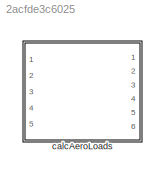
MODEL slx_2acfde3c6025
KIND library
CONFIG AbsTol = auto
CONFIG EnableMultiTasking = off
CONFIG FixedStep = auto
CONFIG MaxStep = auto
CONFIG MinStep = auto
CONFIG RelTol = 1e-3
CONFIG SampleTimeConstraint = Unconstrained
CONFIG Solver = VariableStepAuto
CONFIG SolverName = VariableStepAuto
CONFIG StartTime = 0.0
CONFIG StopTime = 10.0
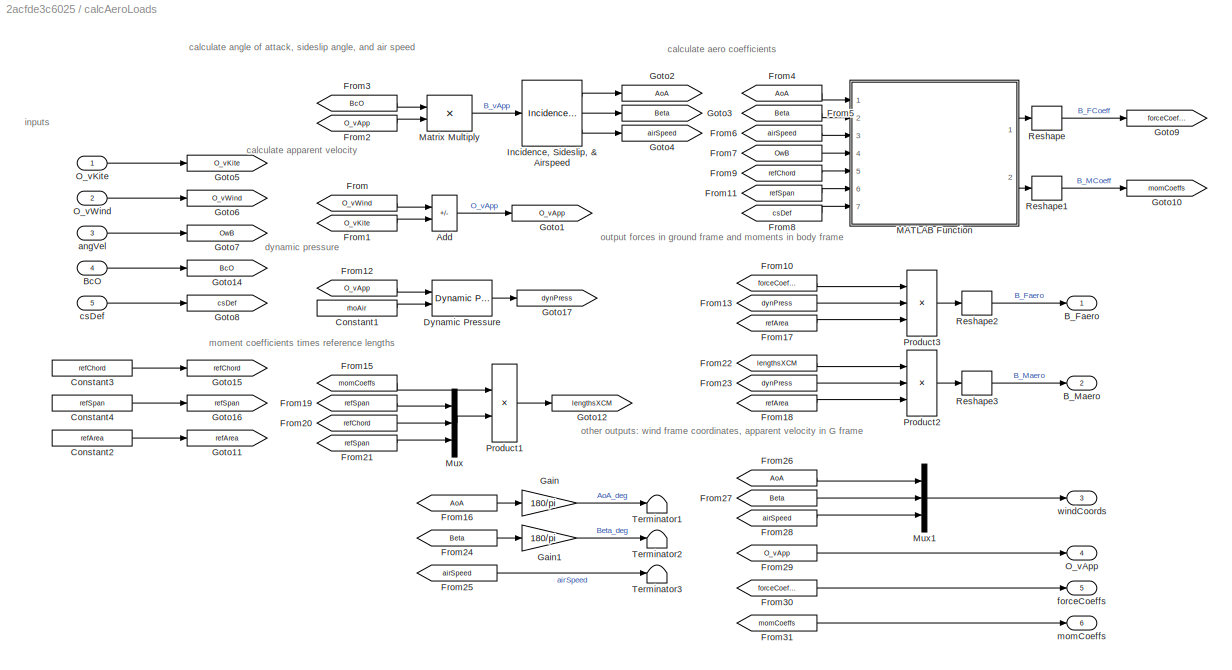
BLOCK [SubSystem] calcAeroLoads
  Ports = [5, 6]
  RequestExecContextInheritance = off
BLOCK [Sum] calcAeroLoads/Add
  IconShape = rectangular
  Inputs = +-
  Ports = [2, 1]
BLOCK [Outport] calcAeroLoads/B_Faero
BLOCK [Outport] calcAeroLoads/B_Maero
  Port = 2
BLOCK [Inport] calcAeroLoads/BcO
  Port = 4
BLOCK [Constant] calcAeroLoads/Constant1
  Value = rhoAir
BLOCK [Constant] calcAeroLoads/Constant2
  Value = refArea
BLOCK [Constant] calcAeroLoads/Constant3
  Value = refChord
BLOCK [Constant] calcAeroLoads/Constant4
  Value = refSpan
BLOCK [Reference] calcAeroLoads/Dynamic Pressure  REF=aerolibasang/Dynamic Pressure
  Ports = [2, 1]
  SourceBlock = aerolibasang/Dynamic Pressure
  SourceProductBaseCode = AE
  SourceType = Dynamic Pressure
BLOCK [From] calcAeroLoads/From
  GotoTag = O_vWind
BLOCK [From] calcAeroLoads/From1
  GotoTag = O_vKite
BLOCK [From] calcAeroLoads/From10
  GotoTag = forceCoeffs
BLOCK [From] calcAeroLoads/From11
  GotoTag = refSpan
BLOCK [From] calcAeroLoads/From12
  GotoTag = O_vApp
BLOCK [From] calcAeroLoads/From13
  GotoTag = dynPress
BLOCK [From] calcAeroLoads/From15
  GotoTag = momCoeffs
BLOCK [From] calcAeroLoads/From16
  GotoTag = AoA
BLOCK [From] calcAeroLoads/From17
  GotoTag = refArea
BLOCK [From] calcAeroLoads/From18
  GotoTag = refArea
BLOCK [From] calcAeroLoads/From19
  GotoTag = refSpan
BLOCK [From] calcAeroLoads/From2
  GotoTag = O_vApp
BLOCK [From] calcAeroLoads/From20
  GotoTag = refChord
BLOCK [From] calcAeroLoads/From21
  GotoTag = refSpan
BLOCK [From] calcAeroLoads/From22
  GotoTag = lengthsXCM
BLOCK [From] calcAeroLoads/From23
  GotoTag = dynPress
BLOCK [From] calcAeroLoads/From24
  GotoTag = Beta
BLOCK [From] calcAeroLoads/From25
  GotoTag = airSpeed
BLOCK [From] calcAeroLoads/From26
  GotoTag = AoA
BLOCK [From] calcAeroLoads/From27
  GotoTag = Beta
BLOCK [From] calcAeroLoads/From28
  GotoTag = airSpeed
BLOCK [From] calcAeroLoads/From29
  GotoTag = O_vApp
BLOCK [From] calcAeroLoads/From3
  GotoTag = BcO
BLOCK [From] calcAeroLoads/From30
  GotoTag = forceCoeffs
BLOCK [From] calcAeroLoads/From31
  GotoTag = momCoeffs
BLOCK [From] calcAeroLoads/From4
  GotoTag = AoA
BLOCK [From] calcAeroLoads/From5
  GotoTag = Beta
BLOCK [From] calcAeroLoads/From6
  GotoTag = airSpeed
BLOCK [From] calcAeroLoads/From7
  GotoTag = OwB
BLOCK [From] calcAeroLoads/From8
  GotoTag = csDef
BLOCK [From] calcAeroLoads/From9
  GotoTag = refChord
BLOCK [Gain] calcAeroLoads/Gain
  Gain = 180/pi
BLOCK [Gain] calcAeroLoads/Gain1
  Gain = 180/pi
BLOCK [Goto] calcAeroLoads/Goto1
  GotoTag = O_vApp
BLOCK [Goto] calcAeroLoads/Goto10
  GotoTag = momCoeffs
BLOCK [Goto] calcAeroLoads/Goto11
  GotoTag = refArea
BLOCK [Goto] calcAeroLoads/Goto12
  GotoTag = lengthsXCM
BLOCK [Goto] calcAeroLoads/Goto14
  GotoTag = BcO
BLOCK [Goto] calcAeroLoads/Goto15
  GotoTag = refChord
BLOCK [Goto] calcAeroLoads/Goto16
  GotoTag = refSpan
BLOCK [Goto] calcAeroLoads/Goto17
  GotoTag = dynPress
BLOCK [Goto] calcAeroLoads/Goto2
  GotoTag = AoA
BLOCK [Goto] calcAeroLoads/Goto3
  GotoTag = Beta
BLOCK [Goto] calcAeroLoads/Goto4
  GotoTag = airSpeed
BLOCK [Goto] calcAeroLoads/Goto5
  GotoTag = O_vKite
BLOCK [Goto] calcAeroLoads/Goto6
  GotoTag = O_vWind
BLOCK [Goto] calcAeroLoads/Goto7
  GotoTag = OwB
BLOCK [Goto] calcAeroLoads/Goto8
  GotoTag = csDef
BLOCK [Goto] calcAeroLoads/Goto9
  GotoTag = forceCoeffs
BLOCK [Reference] calcAeroLoads/Incidence, Sideslip, & Airspeed  REF=aerolibasang/Incidence, Sideslip,
& Airspeed
  Ports = [1, 3]
  SourceBlock = aerolibasang/Incidence, Sideslip,\n& Airspeed
  SourceProductBaseCode = AE
  SourceType = Incidence,Sideslip,&Airspeed
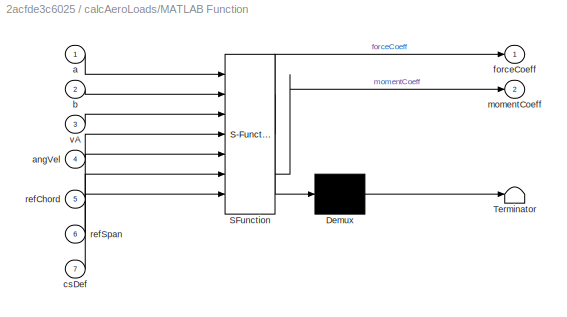
BLOCK [SubSystem] calcAeroLoads/MATLAB Function
  ErrorFcn = Stateflow.Translate.translate
  PermitHierarchicalResolution = ExplicitOnly
  Ports = [7, 2]
  RequestExecContextInheritance = off
  SFBlockType = MATLAB Function
  TreatAsAtomicUnit = on
BLOCK [Demux] calcAeroLoads/MATLAB Function/ Demux 
  Outputs = 1
  Ports = [1, 1]
BLOCK [S-Function] calcAeroLoads/MATLAB Function/ SFunction 
  EnableBusSupport = off
  FunctionName = sf_sfun
  PortCounts = [7 3]
  Ports = [7, 3]
  SFcnIsStateOwnerBlock = off
  SFunctionDeploymentMode = off
  Tag = Stateflow S-Function 2
BLOCK [Terminator] calcAeroLoads/MATLAB Function/ Terminator 
BLOCK [Inport] calcAeroLoads/MATLAB Function/a
BLOCK [Inport] calcAeroLoads/MATLAB Function/angVel
  Port = 4
BLOCK [Inport] calcAeroLoads/MATLAB Function/b
  Port = 2
BLOCK [Inport] calcAeroLoads/MATLAB Function/csDef
  Port = 7
BLOCK [Outport] calcAeroLoads/MATLAB Function/forceCoeff
BLOCK [Outport] calcAeroLoads/MATLAB Function/momentCoeff
  Port = 2
BLOCK [Inport] calcAeroLoads/MATLAB Function/refChord
  Port = 5
BLOCK [Inport] calcAeroLoads/MATLAB Function/refSpan
  Port = 6
BLOCK [Inport] calcAeroLoads/MATLAB Function/vA
  Port = 3
BLOCK [Product] calcAeroLoads/Matrix Multiply
  Multiplication = Matrix(*)
  Ports = [2, 1]
BLOCK [Mux] calcAeroLoads/Mux
  DisplayOption = bar
  Inputs = 3
  Ports = [3, 1]
BLOCK [Mux] calcAeroLoads/Mux1
  DisplayOption = bar
  Inputs = 3
  Ports = [3, 1]
BLOCK [Outport] calcAeroLoads/O_vApp
  Port = 4
BLOCK [Inport] calcAeroLoads/O_vKite
BLOCK [Inport] calcAeroLoads/O_vWind
  Port = 2
BLOCK [Product] calcAeroLoads/Product1
  Ports = [2, 1]
BLOCK [Product] calcAeroLoads/Product2
  Inputs = 3
  Ports = [3, 1]
BLOCK [Product] calcAeroLoads/Product3
  Inputs = 3
  Ports = [3, 1]
BLOCK [Reshape] calcAeroLoads/Reshape
  OutputDimensionality = Column vector (2-D)
  Ports = [1, 1]
BLOCK [Reshape] calcAeroLoads/Reshape1
  OutputDimensionality = Column vector (2-D)
  Ports = [1, 1]
BLOCK [Reshape] calcAeroLoads/Reshape2
  OutputDimensionality = Column vector (2-D)
  Ports = [1, 1]
BLOCK [Reshape] calcAeroLoads/Reshape3
  OutputDimensionality = Column vector (2-D)
  Ports = [1, 1]
BLOCK [Terminator] calcAeroLoads/Terminator1
BLOCK [Terminator] calcAeroLoads/Terminator2
BLOCK [Terminator] calcAeroLoads/Terminator3
BLOCK [Inport] calcAeroLoads/angVel
  Port = 3
BLOCK [Inport] calcAeroLoads/csDef
  Port = 5
BLOCK [Outport] calcAeroLoads/forceCoeffs
  Port = 5
BLOCK [Outport] calcAeroLoads/momCoeffs
  Port = 6
BLOCK [Outport] calcAeroLoads/windCoords
  Port = 3
ANNOTATION calcAeroLoads: calculate aero coefficients
ANNOTATION calcAeroLoads: calculate angle of attack, sideslip angle, and air speed
ANNOTATION calcAeroLoads: calculate apparent velocity
ANNOTATION calcAeroLoads: dynamic pressure
ANNOTATION calcAeroLoads: inputs
ANNOTATION calcAeroLoads: moment coefficients times reference lengths
ANNOTATION calcAeroLoads: other outputs: wind frame coordinates, apparent velocity in G frame
ANNOTATION calcAeroLoads: output forces in ground frame and moments in body frame
LINE calcAeroLoads/Add:1 -> calcAeroLoads/Goto1:1
LINE calcAeroLoads/BcO:1 -> calcAeroLoads/Goto14:1
LINE calcAeroLoads/Constant1:1 -> calcAeroLoads/Dynamic Pressure:2
LINE calcAeroLoads/Constant2:1 -> calcAeroLoads/Goto11:1
LINE calcAeroLoads/Constant3:1 -> calcAeroLoads/Goto15:1
LINE calcAeroLoads/Constant4:1 -> calcAeroLoads/Goto16:1
LINE calcAeroLoads/Dynamic Pressure:1 -> calcAeroLoads/Goto17:1
LINE calcAeroLoads/From10:1 -> calcAeroLoads/Product3:1
LINE calcAeroLoads/From11:1 -> calcAeroLoads/MATLAB Function:6
LINE calcAeroLoads/From12:1 -> calcAeroLoads/Dynamic Pressure:1
LINE calcAeroLoads/From13:1 -> calcAeroLoads/Product3:2
LINE calcAeroLoads/From15:1 -> calcAeroLoads/Product1:1
LINE calcAeroLoads/From16:1 -> calcAeroLoads/Gain:1
LINE calcAeroLoads/From17:1 -> calcAeroLoads/Product3:3
LINE calcAeroLoads/From18:1 -> calcAeroLoads/Product2:3
LINE calcAeroLoads/From19:1 -> calcAeroLoads/Mux:1
LINE calcAeroLoads/From1:1 -> calcAeroLoads/Add:2
LINE calcAeroLoads/From20:1 -> calcAeroLoads/Mux:2
LINE calcAeroLoads/From21:1 -> calcAeroLoads/Mux:3
LINE calcAeroLoads/From22:1 -> calcAeroLoads/Product2:1
LINE calcAeroLoads/From23:1 -> calcAeroLoads/Product2:2
LINE calcAeroLoads/From24:1 -> calcAeroLoads/Gain1:1
LINE calcAeroLoads/From25:1 -> calcAeroLoads/Terminator3:1
LINE calcAeroLoads/From26:1 -> calcAeroLoads/Mux1:1
LINE calcAeroLoads/From27:1 -> calcAeroLoads/Mux1:2
LINE calcAeroLoads/From28:1 -> calcAeroLoads/Mux1:3
LINE calcAeroLoads/From29:1 -> calcAeroLoads/O_vApp:1
LINE calcAeroLoads/From2:1 -> calcAeroLoads/Matrix Multiply:2
LINE calcAeroLoads/From30:1 -> calcAeroLoads/forceCoeffs:1
LINE calcAeroLoads/From31:1 -> calcAeroLoads/momCoeffs:1
LINE calcAeroLoads/From3:1 -> calcAeroLoads/Matrix Multiply:1
LINE calcAeroLoads/From4:1 -> calcAeroLoads/MATLAB Function:1
LINE calcAeroLoads/From5:1 -> calcAeroLoads/MATLAB Function:2
LINE calcAeroLoads/From6:1 -> calcAeroLoads/MATLAB Function:3
LINE calcAeroLoads/From7:1 -> calcAeroLoads/MATLAB Function:4
LINE calcAeroLoads/From8:1 -> calcAeroLoads/MATLAB Function:7
LINE calcAeroLoads/From9:1 -> calcAeroLoads/MATLAB Function:5
LINE calcAeroLoads/From:1 -> calcAeroLoads/Add:1
LINE calcAeroLoads/Gain1:1 -> calcAeroLoads/Terminator2:1
LINE calcAeroLoads/Gain:1 -> calcAeroLoads/Terminator1:1
LINE calcAeroLoads/Incidence, Sideslip, & Airspeed:1 -> calcAeroLoads/Goto2:1
LINE calcAeroLoads/Incidence, Sideslip, & Airspeed:2 -> calcAeroLoads/Goto3:1
LINE calcAeroLoads/Incidence, Sideslip, & Airspeed:3 -> calcAeroLoads/Goto4:1
LINE calcAeroLoads/MATLAB Function:1 -> calcAeroLoads/Reshape:1
LINE calcAeroLoads/MATLAB Function:2 -> calcAeroLoads/Reshape1:1
LINE calcAeroLoads/Matrix Multiply:1 -> calcAeroLoads/Incidence, Sideslip, & Airspeed:1
LINE calcAeroLoads/Mux1:1 -> calcAeroLoads/windCoords:1
LINE calcAeroLoads/Mux:1 -> calcAeroLoads/Product1:2
LINE calcAeroLoads/O_vKite:1 -> calcAeroLoads/Goto5:1
LINE calcAeroLoads/O_vWind:1 -> calcAeroLoads/Goto6:1
LINE calcAeroLoads/Product1:1 -> calcAeroLoads/Goto12:1
LINE calcAeroLoads/Product2:1 -> calcAeroLoads/Reshape3:1
LINE calcAeroLoads/Product3:1 -> calcAeroLoads/Reshape2:1
LINE calcAeroLoads/Reshape1:1 -> calcAeroLoads/Goto10:1
LINE calcAeroLoads/Reshape2:1 -> calcAeroLoads/B_Faero:1
LINE calcAeroLoads/Reshape3:1 -> calcAeroLoads/B_Maero:1
LINE calcAeroLoads/Reshape:1 -> calcAeroLoads/Goto9:1
LINE calcAeroLoads/angVel:1 -> calcAeroLoads/Goto7:1
LINE calcAeroLoads/csDef:1 -> calcAeroLoads/Goto8:1
CHART calcAeroLoads/MATLAB Function states=1 transitions=1
  STATE_LABEL 'eML_blk_kernel()'
  STATE_LABEL 'SCRIPT:\nfunction [forceCoeff,momentCoeff] = aeroCoefficients(a,b,vA,angVel,refChord,...\n    refSpan,csDef)\n\n[forceCoeff,momentCoeff] = calcAeroCoefficients(a,b,vA,angVel,refChord,...\n    refSpan,csDef);\n\nend\n'
CHART  states=0 transitions=0
